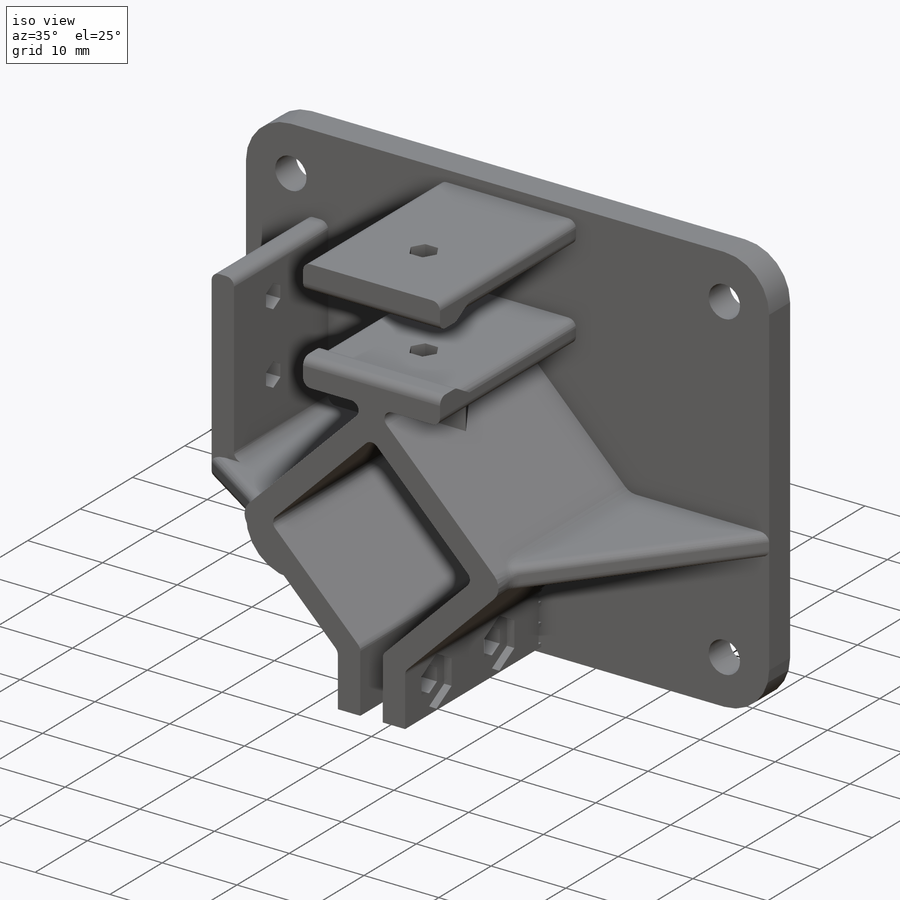
[diagram: iso view]
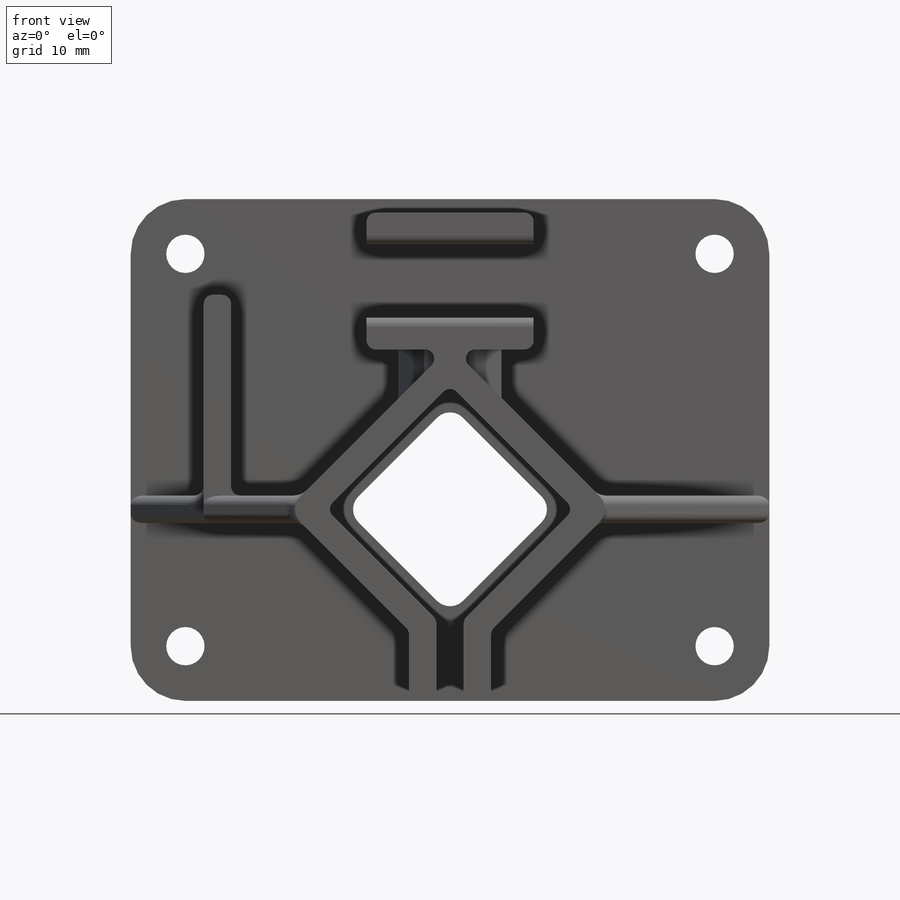
[diagram: front view]
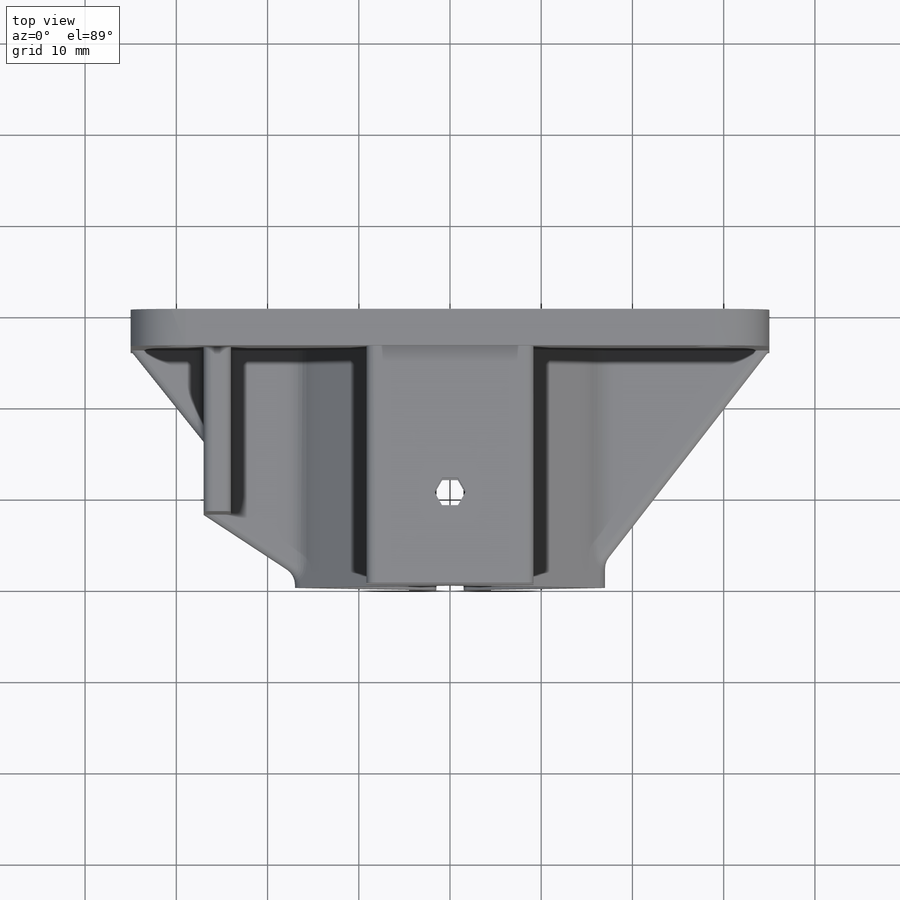
[diagram: top view]
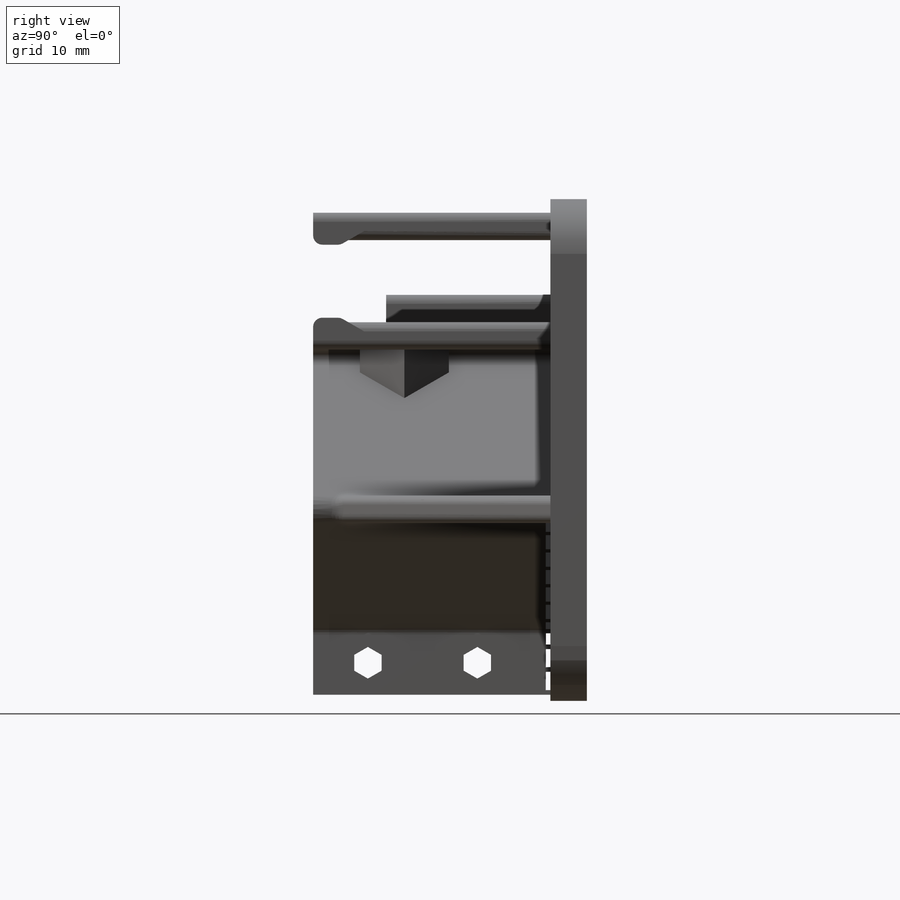
[diagram: right view]
SOLIDWORKS PART (.sldprt)
format: sldprt  version: not decoded by parser v0  size: 1,034,240 bytes
history: native  units: mm
features: sketch x17, fillet x10, cut_extrude x8, extrude x7, material x1, pattern_linear x1, hole x1 (+11 scaffold rows collapsed)
feature tree (56):
  scaffold x11  (default folders/planes/origin — collapsed)
  material  "Material <not specified>"
  sketch  "Sketch1"  dims[c1.D1=~17.784495mm c1.D2=~22.371286mm c2.D1=~9.35073mm c2.D2=~8.508032mm c3.D1=19.2mm c3.D3=~11.325815mm c3.D4=~8.568852mm c4.D3=~12.442287mm c4.D4=~2.205814mm c5.D3=3.0mm c5.D4=3.0mm c5.D5=7.0mm c5.D6=~39.720807mm c5.D7=~73.345824mm c6.D6=70.0mm c6.D7=52.0mm c6.D8=55.0mm c6.D9=25.0mm c6.D10=21.0mm c6.D2=3.0mm]
  extrude  "Boss-Extrude1"  Depth=4mm
  extrude  "Boss-Extrude2"  [1 undecoded]
  sketch  "Sketch1<3>"  dims[D1=30.0mm]
  sketch  "Sketch2"  dims[c1.D1=~2.381276mm c1.D2=~2.935239mm c2.D1=~2.748368mm c2.D2=~2.980295mm c3.D1=~2.925264mm c3.D2=~2.96064mm c4.D1=0.5mm c4.D2=3.5mm c4.D3=2.5mm c4.D4=2.5mm c4.D5=0.5mm c4.D6=~2.653087mm c4.D7=~3.044462mm c5.D6=~2.735943mm c5.D7=~3.007783mm c6.D6=0.5mm c6.D7=0.5mm c6.D8=2.5mm c6.D9=~2.114679mm c6.D10=~3.084779mm c7.D9=~1.774386mm c7.D10=~2.987552mm c8.D9=0.5mm c8.D10=2.7mm c8.D11=0.5mm c8.D12=0.5mm c8.D13=~11.000755mm c8.D7=~2.057538mm c9.D13=~2.964515mm c9.D7=0.5mm c10.D13=0.5mm c10.D14=2.5mm c10.D15=~3.343146mm c10.D3=2.2mm c10.D4=0.5mm c10.D8=0.5mm c10.D10=2.0mm c10.D12=~3.004965mm c11.D12=~179.587967deg c12.D12=~3.235003mm c13.D12=~179.587967deg c14.D12=0.5mm c14.D14=~3.247177mm]
  cut_extrude  "Cut-Extrude1"  Depth=0.5mm
  sketch  "Sketch3"  dims[D1=5.75mm D2=3.0mm D3=8.0mm D4=3.5mm]
  cut_extrude  "Cut-Extrude2"  Depth=1mm
  cut_extrude  "Cut-Extrude3"  [1 undecoded]
  sketch  "Sketch3<3>"
  pattern_linear  "LPattern1"  Count1=2 Count2=1 Spacing1=12mm Spacing2=1mm
  hole  "Ø4.2 (4.2) Diameter Hole1"  Diameter=4.2mm Depth=4mm
  sketch  "Sketch7"  dims[c1.D1=6.0mm c1.D2=15.0mm c2.D1=29.0mm c2.D3=28.0mm]
  sketch  "Sketch8"  dims[hole-wizard template sketch: 60 standard entries collapsed; hole parameters kept: c18.Thru Hole Depth=4.0mm]
  fillet  "Fillet1"  Radius=6mm
  sketch  "Sketch9"  dims[c1.D1=~5.184725mm c1.D2=~5.255093mm c2.D1=~13.812024mm c2.D2=~12.037645mm c3.D1=1.5mm c3.D2=1.5mm c3.D3=1.5mm c3.D4=1.5mm]
  cut_extrude  "Cut-Extrude4"  [1 undecoded]
  sketch  "Sketch12"  dims[c1.D1=~2.839766mm c1.D2=~18.316493mm c2.D1=~2.55579mm c2.D2=~18.316493mm c3.D1=20.5mm c3.D2=9.0mm c3.D3=3.0mm c3.D4=3.0mm]
  extrude  "Boss-Extrude3"  Depth=26mm
  sketch  "Sketch13"  dims[c1.D1=3.0mm c1.D3=5.75mm c2.D1=~3.488491mm c2.D2=20.0mm c2.D3=~5.632203mm c2.D4=2.0mm]
  cut_extrude  "Cut-Extrude6"  [1 undecoded]
  cut_extrude  "Cut-Extrude7"  [1 undecoded]
  sketch  "Sketch13<3>"
  extrude  "Boss-Extrude4"  [1 undecoded]
  sketch  "Sketch13<5>"
  sketch  "Sketch14"  dims[D1=27.1529mm]
  cut_extrude  "Cut-Extrude8"  Depth=25mm
  sketch  "Sketch15"  dims[c1.D1=0.5mm c1.D2=~1.660228mm c2.D2=30.0deg c2.D3=3.0mm]
  extrude  "Boss-Extrude5"  [1 undecoded]
  fillet  "Fillet2"  Radius=1mm
  sketch  "Sketch16"  dims[c1.D1=3.0mm c1.D2=27.0mm c1.D3=18.0mm c1.D4=~4.60455mm c2.D3=18.0mm c2.D4=10.0mm]
  extrude  "Boss-Extrude6"  Depth=3mm
  sketch  "Sketch17"  dims[c1.D1=23.0mm c1.D2=3.0mm c1.D3=25.0mm c2.D1=~20.122407mm c2.D2=~3.656801mm c3.D1=25.0mm c3.D2=3.0mm]
  extrude  "Boss-Extrude7"  Depth=18mm
  sketch  "Sketch18"  dims[c1.D2=2.75mm c1.D1=9.5mm c1.D3=~4.82435mm c1.D4=9.0mm c2.D3=7.5mm]
  cut_extrude  "Cut-Extrude9"  [1 undecoded]
  fillet  "Fillet10"  Radius=1mm
  fillet  "Fillet3"  Radius=2mm
  fillet  "Fillet4"  Radius=1mm
  fillet  "Fillet5"  Radius=1mm
  fillet  "Fillet6"  Radius=1mm
  fillet  "Fillet7"  Radius=2mm
  fillet  "Fillet8"  Radius=2mm
  fillet  "Fillet9"  Radius=1mm
decode coverage: 33 of 44 modeling features carry decoded parameters
note: ~ marks probable driven/reference dimensions
note: 8 parameter values undecoded
summary: no parameter record found for 8 features
note: suppression state not decoded; provenance and decode notes live in map.json
